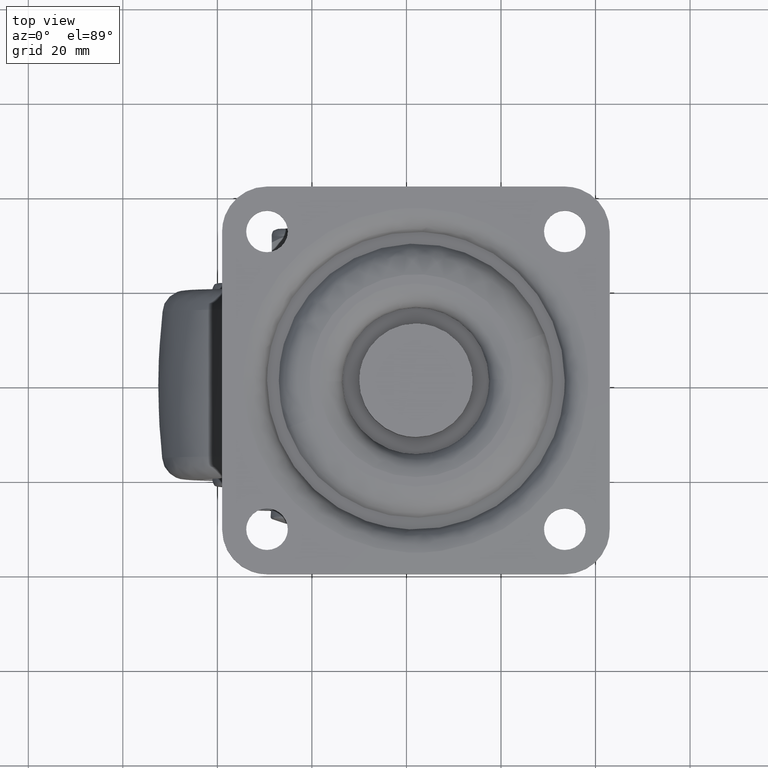
[diagram: clean part render]
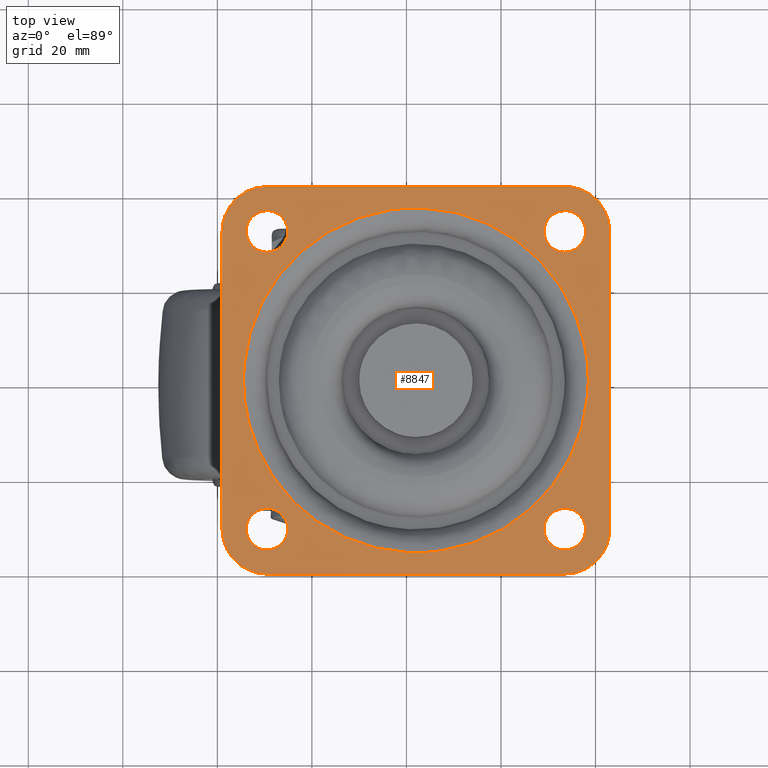
[diagram: same view with one face highlighted and labeled with its STEP entity id]
A machine part, top view. The second image highlights one B-rep face of the part: STEP entity #8847.
In plain terms, the highlighted face is a freeform B-spline surface patch.
Its self-contained STEP definition (entity closure, byte-faithful):
#7495=CARTESIAN_POINT('',(-6.527402701562045,28.255979384070901,57.500000000000000));
#7496=VERTEX_POINT('',#7495);
#7502=CARTESIAN_POINT('',(-5.099999900000237,31.500000000000000,57.500000000000000));
#7503=VERTEX_POINT('',#7502);
#7504=CARTESIAN_POINT('',(-6.527402701562045,28.255979384070901,57.500000000000000));
#7505=CARTESIAN_POINT('',(-6.289242418282301,28.474142888724820,57.499999999999950));
#7506=CARTESIAN_POINT('',(-5.836118736105115,28.991989090713211,57.499999999999957));
#7507=CARTESIAN_POINT('',(-5.264003538548097,30.075355924487379,57.500000000000227));
#7508=CARTESIAN_POINT('',(-5.099533962895871,30.967967025596391,57.499999999999751));
#7509=CARTESIAN_POINT('',(-5.099999900000237,31.500000000000000,57.500000000000000));
#7510=B_SPLINE_CURVE_WITH_KNOTS('',3,(#7504,#7505,#7506,#7507,#7508,#7509),.UNSPECIFIED.,.F.,.U.,(4,1,1,4),(0.000000040442501,0.968938562510468,2.051848817631985,3.647763831372812),.UNSPECIFIED.);
#7511=EDGE_CURVE('',#7496,#7503,#7510,.T.);
#7513=CARTESIAN_POINT('',(-9.500001631323901,35.900000099999687,57.500000000000000));
#7514=VERTEX_POINT('',#7513);
#7515=CARTESIAN_POINT('',(-5.099999900000237,31.500000000000000,57.500000000000000));
#7516=CARTESIAN_POINT('',(-5.099786186830957,31.949991853548159,57.499999999999929));
#7517=CARTESIAN_POINT('',(-5.219791463868427,32.723802614140283,57.500000000000057));
#7518=CARTESIAN_POINT('',(-5.638137398786255,33.667444084587402,57.499999999999943));
#7519=CARTESIAN_POINT('',(-6.085469292208522,34.302507095319129,57.500000000000099));
#7520=CARTESIAN_POINT('',(-6.636267202598068,34.874050999744917,57.499999999999993));
#7521=CARTESIAN_POINT('',(-7.344313519638554,35.379272300795563,57.499999999999829));
#7522=CARTESIAN_POINT('',(-8.348157021193245,35.795071142282303,57.499999999999922));
#7523=CARTESIAN_POINT('',(-9.086019370627380,35.900142216079963,57.500000000000227));
#7524=CARTESIAN_POINT('',(-9.500001631323901,35.900000099999687,57.500000000000000));
#7525=B_SPLINE_CURVE_WITH_KNOTS('',3,(#7515,#7516,#7517,#7518,#7519,#7520,#7521,#7522,#7523,#7524),.UNSPECIFIED.,.F.,.U.,(4,1,1,1,1,1,1,4),(0.000000127059161,1.349911511281638,2.321851523640309,3.077830769313980,3.671722548281210,4.697689286290284,5.669633217520468,6.911548281187075),.UNSPECIFIED.);
#7526=EDGE_CURVE('',#7503,#7514,#7525,.T.);
#7528=CARTESIAN_POINT('',(-12.472597298438410,34.744020615929102,57.500000000000000));
#7529=VERTEX_POINT('',#7528);
#7530=CARTESIAN_POINT('',(-9.500001631323901,35.900000099999687,57.500000000000000));
#7531=CARTESIAN_POINT('',(-9.976025415636716,35.900306320871763,57.500000000000007));
#7532=CARTESIAN_POINT('',(-10.621764202826281,35.794125980035773,57.500000000000107));
#7533=CARTESIAN_POINT('',(-11.632807391123571,35.387397916244190,57.499999999999929));
#7534=CARTESIAN_POINT('',(-12.146866166264241,35.042799054317051,57.500000000000107));
#7535=CARTESIAN_POINT('',(-12.472597298438410,34.744020615929102,57.500000000000000));
#7536=B_SPLINE_CURVE_WITH_KNOTS('',3,(#7530,#7531,#7532,#7533,#7534,#7535),.UNSPECIFIED.,.F.,.U.,(4,1,1,4),(0.000000029733942,1.427917064212665,1.937858270751911,3.263782619541725),.UNSPECIFIED.);
#7537=EDGE_CURVE('',#7514,#7529,#7536,.T.);
#7577=CARTESIAN_POINT('',(-13.900000100000231,31.500000000000000,57.500000000000000));
#7578=VERTEX_POINT('',#7577);
#7579=CARTESIAN_POINT('',(-12.472597298438410,34.744020615929102,57.500000000000000));
#7580=CARTESIAN_POINT('',(-12.682726996081870,34.551513056882762,57.499999999999901));
#7581=CARTESIAN_POINT('',(-13.078150073917270,34.111273331500207,57.500000000000263));
#7582=CARTESIAN_POINT('',(-13.532871741502360,33.337218183686339,57.499999999999901));
#7583=CARTESIAN_POINT('',(-13.830662593077900,32.449901921192627,57.499999999999993));
#7584=CARTESIAN_POINT('',(-13.900052577633961,31.822981861195441,57.500000000000128));
#7585=CARTESIAN_POINT('',(-13.900000100000231,31.500000000000000,57.500000000000000));
#7586=B_SPLINE_CURVE_WITH_KNOTS('',3,(#7579,#7580,#7581,#7582,#7583,#7584,#7585),.UNSPECIFIED.,.F.,.U.,(4,1,1,1,4),(0.000000040442399,0.854943413873980,1.766907071950923,2.678825309338811,3.647763831372818),.UNSPECIFIED.);
#7587=EDGE_CURVE('',#7529,#7578,#7586,.T.);
#7589=CARTESIAN_POINT('',(-9.499998368676536,27.099999900000309,57.500000000000000));
#7590=VERTEX_POINT('',#7589);
#7591=CARTESIAN_POINT('',(-13.900000100000231,31.500000000000000,57.500000000000000));
#7592=CARTESIAN_POINT('',(-13.900088943306439,31.140018430724449,57.500000000000107));
#7593=CARTESIAN_POINT('',(-13.813377505169990,30.438106310771779,57.499999999999858));
#7594=CARTESIAN_POINT('',(-13.454009583135351,29.489075527258290,57.499999999999993));
#7595=CARTESIAN_POINT('',(-12.935968176006460,28.703447470015622,57.499999999999957));
#7596=CARTESIAN_POINT('',(-12.360467601219980,28.128008379485181,57.499999999999957));
#7597=CARTESIAN_POINT('',(-11.637487786954241,27.618725419536201,57.499999999999893));
#7598=CARTESIAN_POINT('',(-10.705854722502730,27.212571967596539,57.500000000000583));
#7599=CARTESIAN_POINT('',(-9.913981808138875,27.099851830851868,57.499999999999218));
#7600=CARTESIAN_POINT('',(-9.499998368676536,27.099999900000309,57.500000000000000));
#7601=B_SPLINE_CURVE_WITH_KNOTS('',3,(#7591,#7592,#7593,#7594,#7595,#7596,#7597,#7598,#7599,#7600),.UNSPECIFIED.,.F.,.U.,(4,1,1,1,1,1,1,4),(0.000000127036394,1.079927022691353,2.105872757187941,3.023805829710967,3.887740412407450,4.535690525138591,5.669633217517702,6.911548281187209),.UNSPECIFIED.);
#7602=EDGE_CURVE('',#7578,#7590,#7601,.T.);
#7604=CARTESIAN_POINT('',(-9.499998368676536,27.099999900000309,57.500000000000000));
#7605=CARTESIAN_POINT('',(-9.075004617093955,27.099826009917692,57.500000000000043));
#7606=CARTESIAN_POINT('',(-8.378176808601715,27.201805057727221,57.500000000000227));
#7607=CARTESIAN_POINT('',(-7.364497932445842,27.609588551627638,57.499999999999673));
#7608=CARTESIAN_POINT('',(-6.815586144059509,27.991748031526900,57.500000000000242));
#7609=CARTESIAN_POINT('',(-6.527402701562045,28.255979384070901,57.500000000000000));
#7610=B_SPLINE_CURVE_WITH_KNOTS('',3,(#7604,#7605,#7606,#7607,#7608,#7609),.UNSPECIFIED.,.F.,.U.,(4,1,1,4),(0.000000029735359,1.274917707546353,2.090858378360901,3.263782619541709),.UNSPECIFIED.);
#7611=EDGE_CURVE('',#7590,#7496,#7610,.T.);
#7700=CARTESIAN_POINT('',(-6.527402701562045,-34.744020615929102,57.499999999999993));
#7701=VERTEX_POINT('',#7700);
#7707=CARTESIAN_POINT('',(-5.099999900000237,-31.500000000000000,57.500000000000000));
#7708=VERTEX_POINT('',#7707);
#7709=CARTESIAN_POINT('',(-6.527402701562045,-34.744020615929102,57.499999999999993));
#7710=CARTESIAN_POINT('',(-6.219092384708263,-34.461762944287763,57.499999999999801));
#7711=CARTESIAN_POINT('',(-5.842224674313779,-34.001432222025670,57.500000000000178));
#7712=CARTESIAN_POINT('',(-5.424606429474629,-33.210437128142473,57.499999999999922));
#7713=CARTESIAN_POINT('',(-5.169340456336110,-32.449907933971268,57.499999999999957));
#7714=CARTESIAN_POINT('',(-5.099940596523371,-31.822981297149560,57.500000000000007));
#7715=CARTESIAN_POINT('',(-5.099999900000237,-31.500000000000000,57.500000000000000));
#7716=B_SPLINE_CURVE_WITH_KNOTS('',3,(#7709,#7710,#7711,#7712,#7713,#7714,#7715),.UNSPECIFIED.,.F.,.U.,(4,1,1,1,4),(0.000000040440889,1.253925704476554,1.766907071949888,2.678825309338649,3.647763831372813),.UNSPECIFIED.);
#7717=EDGE_CURVE('',#7701,#7708,#7716,.T.);
#7719=CARTESIAN_POINT('',(-9.500001631323901,-27.099999900000309,57.500000000000000));
#7720=VERTEX_POINT('',#7719);
#7721=CARTESIAN_POINT('',(-5.099999900000237,-31.500000000000000,57.500000000000000));
#7722=CARTESIAN_POINT('',(-5.099910969079035,-31.140019993687240,57.499999999999979));
#7723=CARTESIAN_POINT('',(-5.177747142504550,-30.510103292868610,57.500000000000071));
#7724=CARTESIAN_POINT('',(-5.465046458203291,-29.691448828809460,57.499999999999922));
#7725=CARTESIAN_POINT('',(-5.834785638188303,-29.029321363854422,57.499999999999901));
#7726=CARTESIAN_POINT('',(-6.331450174374908,-28.408722999708338,57.500000000000462));
#7727=CARTESIAN_POINT('',(-6.937562806119041,-27.892346763964941,57.499999999998970));
#7728=CARTESIAN_POINT('',(-7.689023887860149,-27.460522799228109,57.500000000000760));
#7729=CARTESIAN_POINT('',(-8.528084640690015,-27.171871015518722,57.500000000000327));
#7730=CARTESIAN_POINT('',(-9.176023324400797,-27.099946098939590,57.499999999999837));
#7731=CARTESIAN_POINT('',(-9.500001631323901,-27.099999900000309,57.500000000000000));
#7732=B_SPLINE_CURVE_WITH_KNOTS('',3,(#7721,#7722,#7723,#7724,#7725,#7726,#7727,#7728,#7729,#7730,#7731),.UNSPECIFIED.,.F.,.U.,(4,1,1,1,1,1,1,1,4),(0.000000127038092,1.079927022692838,1.889878578176466,2.591833459394220,3.347811319401545,4.265704315630147,4.967673592738070,5.939616183974813,6.911548281187198),.UNSPECIFIED.);
#7733=EDGE_CURVE('',#7708,#7720,#7732,.T.);
#7735=CARTESIAN_POINT('',(-12.472597298438410,-28.255979384070908,57.500000000000000));
#7736=VERTEX_POINT('',#7735);
#7737=CARTESIAN_POINT('',(-9.500001631323901,-27.099999900000309,57.500000000000000));
#7738=CARTESIAN_POINT('',(-9.822983268207874,-27.099948528702559,57.500000000000043));
#7739=CARTESIAN_POINT('',(-10.383904721675650,-27.162057700292731,57.499999999999979));
#7740=CARTESIAN_POINT('',(-11.426282707162139,-27.485943478332160,57.499999999999979));
#7741=CARTESIAN_POINT('',(-12.084334513467979,-27.899556363934991,57.500000000000043));
#7742=CARTESIAN_POINT('',(-12.472597298438410,-28.255979384070908,57.500000000000000));
#7743=B_SPLINE_CURVE_WITH_KNOTS('',3,(#7737,#7738,#7739,#7740,#7741,#7742),.UNSPECIFIED.,.F.,.U.,(4,1,1,4),(0.000000029733964,0.968938780017570,1.682868004581571,3.263782619541737),.UNSPECIFIED.);
#7744=EDGE_CURVE('',#7720,#7736,#7743,.T.);
#7785=CARTESIAN_POINT('',(-13.900000100000231,-31.500000000000000,57.500000000000000));
#7786=VERTEX_POINT('',#7785);
#7787=CARTESIAN_POINT('',(-12.472597298438410,-28.255979384070908,57.500000000000000));
#7788=CARTESIAN_POINT('',(-12.738789489970991,-28.499798039158431,57.500000000000178));
#7789=CARTESIAN_POINT('',(-13.223071646265449,-29.067987621461398,57.499999999999837));
#7790=CARTESIAN_POINT('',(-13.760222360934220,-30.170209431396870,57.500000000000242));
#7791=CARTESIAN_POINT('',(-13.900256394804311,-31.025009730534240,57.499999999999929));
#7792=CARTESIAN_POINT('',(-13.900000100000231,-31.500000000000000,57.500000000000000));
#7793=B_SPLINE_CURVE_WITH_KNOTS('',3,(#7787,#7788,#7789,#7790,#7791,#7792),.UNSPECIFIED.,.F.,.U.,(4,1,1,4),(0.000000040442767,1.082931770160596,2.222843118794138,3.647763831372810),.UNSPECIFIED.);
#7794=EDGE_CURVE('',#7736,#7786,#7793,.T.);
#7796=CARTESIAN_POINT('',(-9.499998368676527,-35.900000099999687,57.499999999999993));
#7797=VERTEX_POINT('',#7796);
#7798=CARTESIAN_POINT('',(-13.900000100000231,-31.500000000000000,57.500000000000000));
#7799=CARTESIAN_POINT('',(-13.900094308276021,-31.859982353179120,57.500000000000043));
#7800=CARTESIAN_POINT('',(-13.822240187629770,-32.489891445333832,57.499999999999922));
#7801=CARTESIAN_POINT('',(-13.534964431722720,-33.308556414042997,57.500000000000043));
#7802=CARTESIAN_POINT('',(-13.182812095009840,-33.939147466300021,57.499999999999829));
#7803=CARTESIAN_POINT('',(-12.749781789525519,-34.494024375031231,57.500000000000163));
#7804=CARTESIAN_POINT('',(-12.233600751604721,-34.973537471384191,57.499999999999567));
#7805=CARTESIAN_POINT('',(-11.555270929897191,-35.420813600895109,57.500000000000490));
#7806=CARTESIAN_POINT('',(-10.651856934228819,-35.795086017757249,57.499999999999083));
#7807=CARTESIAN_POINT('',(-9.913977688135141,-35.900146379699819,57.500000000000803));
#7808=CARTESIAN_POINT('',(-9.499998368676527,-35.900000099999687,57.499999999999993));
#7809=B_SPLINE_CURVE_WITH_KNOTS('',3,(#7798,#7799,#7800,#7801,#7802,#7803,#7804,#7805,#7806,#7807,#7808),.UNSPECIFIED.,.F.,.U.,(4,1,1,1,1,1,1,1,4),(0.000000127030965,1.079927022688323,1.889878578173505,2.591833459392204,3.239824994284502,3.995720813652691,4.697689286285346,5.669633217517719,6.911548281187228),.UNSPECIFIED.);
#7810=EDGE_CURVE('',#7786,#7797,#7809,.T.);
#7812=CARTESIAN_POINT('',(-9.499998368676527,-35.900000099999687,57.499999999999993));
#7813=CARTESIAN_POINT('',(-9.075007696535307,-35.900173175037636,57.499999999999901));
#7814=CARTESIAN_POINT('',(-8.293165013702598,-35.785830863804136,57.499999999999837));
#7815=CARTESIAN_POINT('',(-7.288646388126717,-35.347457354733038,57.500000000000497));
#7816=CARTESIAN_POINT('',(-6.752968548004724,-34.950765765492967,57.499999999999758));
#7817=CARTESIAN_POINT('',(-6.527402701562045,-34.744020615929102,57.499999999999993));
#7818=B_SPLINE_CURVE_WITH_KNOTS('',3,(#7812,#7813,#7814,#7815,#7816,#7817),.UNSPECIFIED.,.F.,.U.,(4,1,1,4),(0.000000029733318,1.274917707544901,2.345842329852147,3.263782619541721),.UNSPECIFIED.);
#7819=EDGE_CURVE('',#7797,#7701,#7818,.T.);
#7907=CARTESIAN_POINT('',(56.472597298438188,-34.744020615929102,57.500000000000000));
#7908=VERTEX_POINT('',#7907);
#7914=CARTESIAN_POINT('',(57.900000100000000,-31.500000000000000,57.500000000000000));
#7915=VERTEX_POINT('',#7914);
#7916=CARTESIAN_POINT('',(56.472597298438188,-34.744020615929102,57.500000000000000));
#7917=CARTESIAN_POINT('',(56.682732805457853,-34.551516247601413,57.500000000000007));
#7918=CARTESIAN_POINT('',(57.039865607044483,-34.153868033024267,57.499999999999943));
#7919=CARTESIAN_POINT('',(57.428848638926723,-33.520156989498062,57.499999999999993));
#7920=CARTESIAN_POINT('',(57.788123735391103,-32.658762446106543,57.500000000000099));
#7921=CARTESIAN_POINT('',(57.900313444675383,-31.975019706936038,57.499999999999872));
#7922=CARTESIAN_POINT('',(57.900000100000000,-31.500000000000000,57.500000000000000));
#7923=B_SPLINE_CURVE_WITH_KNOTS('',3,(#7916,#7917,#7918,#7919,#7920,#7921,#7922),.UNSPECIFIED.,.F.,.U.,(4,1,1,1,4),(0.000000040437435,0.854943413870985,1.595915054214738,2.222843118793711,3.647763831372846),.UNSPECIFIED.);
#7924=EDGE_CURVE('',#7908,#7915,#7923,.T.);
#7926=CARTESIAN_POINT('',(53.499998368676337,-27.099999900000299,57.500000000000000));
#7927=VERTEX_POINT('',#7926);
#7928=CARTESIAN_POINT('',(57.900000100000000,-31.500000000000000,57.500000000000000));
#7929=CARTESIAN_POINT('',(57.900023626821913,-31.230018980401550,57.500000000000050));
#7930=CARTESIAN_POINT('',(57.845178813040192,-30.636066099081312,57.500000000000000));
#7931=CARTESIAN_POINT('',(57.561421341261422,-29.700251203293600,57.500000000000163));
#7932=CARTESIAN_POINT('',(57.090430198910482,-28.903487504446758,57.499999999999467));
#7933=CARTESIAN_POINT('',(56.496490077179082,-28.248277304609388,57.500000000001293));
#7934=CARTESIAN_POINT('',(55.840666878181523,-27.736430327848488,57.499999999998430));
#7935=CARTESIAN_POINT('',(54.831702310621530,-27.243840950817539,57.500000000001400));
#7936=CARTESIAN_POINT('',(54.004008079609498,-27.099673051419831,57.499999999999723));
#7937=CARTESIAN_POINT('',(53.499998368676337,-27.099999900000299,57.500000000000000));
#7938=B_SPLINE_CURVE_WITH_KNOTS('',3,(#7928,#7929,#7930,#7931,#7932,#7933,#7934,#7935,#7936,#7937),.UNSPECIFIED.,.F.,.U.,(4,1,1,1,1,1,1,4),(0.000000127045891,0.809947599830785,1.781884856258335,2.915832673779339,3.563737671104057,4.427706320183981,5.399648910669052,6.911548281187097),.UNSPECIFIED.);
#7939=EDGE_CURVE('',#7915,#7927,#7938,.T.);
#7941=CARTESIAN_POINT('',(50.527402701561819,-28.255979384070908,57.500000000000000));
#7942=VERTEX_POINT('',#7941);
#7943=CARTESIAN_POINT('',(53.499998368676337,-27.099999900000299,57.500000000000000));
#7944=CARTESIAN_POINT('',(53.177014619449913,-27.099936225858219,57.500000000000050));
#7945=CARTESIAN_POINT('',(52.565095496954882,-27.167699892867759,57.499999999999929));
#7946=CARTESIAN_POINT('',(51.526903699952292,-27.510191887900820,57.500000000000028));
#7947=CARTESIAN_POINT('',(50.878150510499573,-27.934164339319882,57.499999999999893));
#7948=CARTESIAN_POINT('',(50.527402701561819,-28.255979384070908,57.500000000000000));
#7949=B_SPLINE_CURVE_WITH_KNOTS('',3,(#7943,#7944,#7945,#7946,#7947,#7948),.UNSPECIFIED.,.F.,.U.,(4,1,1,4),(0.000000029732344,0.968938780015739,1.835865585016554,3.263782619541724),.UNSPECIFIED.);
#7950=EDGE_CURVE('',#7927,#7942,#7949,.T.);
#7990=CARTESIAN_POINT('',(49.099999900000000,-31.500000000000000,57.500000000000000));
#7991=VERTEX_POINT('',#7990);
#7992=CARTESIAN_POINT('',(50.527402701561819,-28.255979384070908,57.500000000000000));
#7993=CARTESIAN_POINT('',(50.289234666950200,-28.474137512931868,57.500000000000043));
#7994=CARTESIAN_POINT('',(49.911679692156490,-28.905717579540610,57.500000000000007));
#7995=CARTESIAN_POINT('',(49.443655826993670,-29.714289441299918,57.500000000000050));
#7996=CARTESIAN_POINT('',(49.162909547286880,-30.569062405506930,57.499999999999922));
#7997=CARTESIAN_POINT('',(49.099982171529199,-31.215023152366491,57.500000000000128));
#7998=CARTESIAN_POINT('',(49.099999900000000,-31.500000000000000,57.500000000000000));
#7999=B_SPLINE_CURVE_WITH_KNOTS('',3,(#7992,#7993,#7994,#7995,#7996,#7997,#7998),.UNSPECIFIED.,.F.,.U.,(4,1,1,1,4),(0.000000040437690,0.968938562507633,1.709905313084683,2.792820457975227,3.647763831372812),.UNSPECIFIED.);
#8000=EDGE_CURVE('',#7942,#7991,#7999,.T.);
#8002=CARTESIAN_POINT('',(53.500001631323698,-35.900000099999701,57.500000000000000));
#8003=VERTEX_POINT('',#8002);
#8004=CARTESIAN_POINT('',(49.099999900000000,-31.500000000000000,57.500000000000000));
#8005=CARTESIAN_POINT('',(49.099959588309851,-31.841962443142009,57.500000000000007));
#8006=CARTESIAN_POINT('',(49.190547288926311,-32.615948261560767,57.500000000000078));
#8007=CARTESIAN_POINT('',(49.568839478028309,-33.561960779494179,57.499999999999908));
#8008=CARTESIAN_POINT('',(50.115223749617208,-34.347679584644361,57.500000000000291));
#8009=CARTESIAN_POINT('',(50.613948078554152,-34.846426560519987,57.499999999999453));
#8010=CARTESIAN_POINT('',(51.256999943043112,-35.311215940467399,57.500000000000632));
#8011=CARTESIAN_POINT('',(52.168284325158687,-35.756175022750497,57.499999999998970));
#8012=CARTESIAN_POINT('',(52.995996559431383,-35.900321860196392,57.500000000000469));
#8013=CARTESIAN_POINT('',(53.500001631323698,-35.900000099999701,57.500000000000000));
#8014=B_SPLINE_CURVE_WITH_KNOTS('',3,(#8004,#8005,#8006,#8007,#8008,#8009,#8010,#8011,#8012,#8013),.UNSPECIFIED.,.F.,.U.,(4,1,1,1,1,1,1,4),(0.000000127033682,1.025916282003032,2.321851523628146,3.023805829711797,3.887740412408114,4.427706320180405,5.399648910667081,6.911548281187237),.UNSPECIFIED.);
#8015=EDGE_CURVE('',#7991,#8003,#8014,.T.);
#8017=CARTESIAN_POINT('',(53.500001631323698,-35.900000099999701,57.500000000000000));
#8018=CARTESIAN_POINT('',(53.822976328300093,-35.900039312681507,57.499999999999922));
#8019=CARTESIAN_POINT('',(54.553941406617547,-35.819250434338770,57.500000000000149));
#8020=CARTESIAN_POINT('',(55.582261499218632,-35.433060715037932,57.500000000000163));
#8021=CARTESIAN_POINT('',(56.209445585962939,-34.985226012104270,57.499999999999773));
#8022=CARTESIAN_POINT('',(56.472597298438188,-34.744020615929102,57.500000000000000));
#8023=B_SPLINE_CURVE_WITH_KNOTS('',3,(#8017,#8018,#8019,#8020,#8021,#8022),.UNSPECIFIED.,.F.,.U.,(4,1,1,4),(0.000000029739461,0.968938780020749,2.192849980075957,3.263782619541692),.UNSPECIFIED.);
#8024=EDGE_CURVE('',#8003,#7908,#8023,.T.);
#8113=CARTESIAN_POINT('',(56.472597298438188,28.255979384070901,57.500000000000000));
#8114=VERTEX_POINT('',#8113);
#8120=CARTESIAN_POINT('',(57.900000100000000,31.500000000000000,57.500000000000000));
#8121=VERTEX_POINT('',#8120);
#8122=CARTESIAN_POINT('',(56.472597298438188,28.255979384070901,57.500000000000000));
#8123=CARTESIAN_POINT('',(56.808951798638958,28.563882456073049,57.500000000000050));
#8124=CARTESIAN_POINT('',(57.240441274619663,29.105116015784620,57.499999999999879));
#8125=CARTESIAN_POINT('',(57.662857259527158,30.001524068283850,57.500000000000107));
#8126=CARTESIAN_POINT('',(57.858603853620217,30.740043967974710,57.499999999999488));
#8127=CARTESIAN_POINT('',(57.900003706170452,31.272020481710410,57.500000000000362));
#8128=CARTESIAN_POINT('',(57.900000100000000,31.500000000000000,57.500000000000000));
#8129=B_SPLINE_CURVE_WITH_KNOTS('',3,(#8122,#8123,#8124,#8125,#8126,#8127,#8128),.UNSPECIFIED.,.F.,.U.,(4,1,1,1,4),(0.000000040445024,1.367912114959336,2.051848817633561,2.963814317691528,3.647763831372816),.UNSPECIFIED.);
#8130=EDGE_CURVE('',#8114,#8121,#8129,.T.);
#8132=CARTESIAN_POINT('',(53.499998368676337,35.900000099999701,57.500000000000000));
#8133=VERTEX_POINT('',#8132);
#8134=CARTESIAN_POINT('',(57.900000100000000,31.500000000000000,57.500000000000000));
#8135=CARTESIAN_POINT('',(57.900097274844079,31.859982591711990,57.500000000000071));
#8136=CARTESIAN_POINT('',(57.822236780845557,32.489891272840993,57.499999999999829));
#8137=CARTESIAN_POINT('',(57.558897751723123,33.240334652640620,57.500000000000178));
#8138=CARTESIAN_POINT('',(57.222891098920492,33.878328351315488,57.499999999999758));
#8139=CARTESIAN_POINT('',(56.748899844262588,34.517524331708742,57.499999999999922));
#8140=CARTESIAN_POINT('',(56.107414861072378,35.077765164668662,57.500000000001002));
#8141=CARTESIAN_POINT('',(55.390123183735483,35.495751428408148,57.499999999998550));
#8142=CARTESIAN_POINT('',(54.561858984252503,35.809471424051132,57.500000000001798));
#8143=CARTESIAN_POINT('',(53.895979646443287,35.900131638956992,57.499999999998941));
#8144=CARTESIAN_POINT('',(53.499998368676337,35.900000099999701,57.500000000000000));
#8145=B_SPLINE_CURVE_WITH_KNOTS('',3,(#8134,#8135,#8136,#8137,#8138,#8139,#8140,#8141,#8142,#8143,#8144),.UNSPECIFIED.,.F.,.U.,(4,1,1,1,1,1,1,1,4),(0.000000127039663,1.079927022694858,1.889878578178412,2.375861410940565,3.239824994287245,4.265704315630608,4.913671791979601,5.723640054548143,6.911548281187213),.UNSPECIFIED.);
#8146=EDGE_CURVE('',#8121,#8133,#8145,.T.);
#8148=CARTESIAN_POINT('',(50.527402701561812,34.744020615929102,57.500000000000000));
#8149=VERTEX_POINT('',#8148);
#8150=CARTESIAN_POINT('',(53.499998368676337,35.900000099999701,57.500000000000000));
#8151=CARTESIAN_POINT('',(53.075000661600349,35.900190558357060,57.499999999999950));
#8152=CARTESIAN_POINT('',(52.463169600623722,35.810616234219943,57.500000000000007));
#8153=CARTESIAN_POINT('',(51.440405107967813,35.433234446017607,57.500000000000007));
#8154=CARTESIAN_POINT('',(50.878152212053202,35.065848333222377,57.500000000000057));
#8155=CARTESIAN_POINT('',(50.527402701561812,34.744020615929102,57.500000000000000));
#8156=B_SPLINE_CURVE_WITH_KNOTS('',3,(#8150,#8151,#8152,#8153,#8154,#8155),.UNSPECIFIED.,.F.,.U.,(4,1,1,4),(0.000000029734006,1.274917707545839,1.835865585018242,3.263782619541754),.UNSPECIFIED.);
#8157=EDGE_CURVE('',#8133,#8149,#8156,.T.);
#8198=CARTESIAN_POINT('',(49.099999900000000,31.500000000000000,57.500000000000000));
#8199=VERTEX_POINT('',#8198);
#8200=CARTESIAN_POINT('',(50.527402701561812,34.744020615929102,57.500000000000000));
#8201=CARTESIAN_POINT('',(50.289255026134732,34.525850631177128,57.499999999999893));
#8202=CARTESIAN_POINT('',(49.823480060389109,33.993648023090401,57.500000000000178));
#8203=CARTESIAN_POINT('',(49.258005966501329,32.905688882939600,57.499999999999893));
#8204=CARTESIAN_POINT('',(49.099604907481499,32.013014783961630,57.500000000000000));
#8205=CARTESIAN_POINT('',(49.099999900000000,31.500000000000000,57.500000000000000));
#8206=B_SPLINE_CURVE_WITH_KNOTS('',3,(#8200,#8201,#8202,#8203,#8204,#8205),.UNSPECIFIED.,.F.,.U.,(4,1,1,4),(0.000000040442838,0.968938562511109,2.108855720755513,3.647763831372785),.UNSPECIFIED.);
#8207=EDGE_CURVE('',#8149,#8199,#8206,.T.);
#8209=CARTESIAN_POINT('',(53.500001631323691,27.099999900000299,57.500000000000000));
#8210=VERTEX_POINT('',#8209);
#8211=CARTESIAN_POINT('',(49.099999900000000,31.500000000000000,57.500000000000000));
#8212=CARTESIAN_POINT('',(49.099569585129643,30.977963704595648,57.500000000000050));
#8213=CARTESIAN_POINT('',(49.239395190931681,30.204338685423000,57.500000000000007));
#8214=CARTESIAN_POINT('',(49.679791051254490,29.273493056978300,57.500000000000107));
#8215=CARTESIAN_POINT('',(50.085463710645371,28.697491904825309,57.499999999999837));
#8216=CARTESIAN_POINT('',(50.623755661671332,28.138941996791321,57.499999999999837));
#8217=CARTESIAN_POINT('',(51.210791055243661,27.714640923105559,57.500000000000057));
#8218=CARTESIAN_POINT('',(51.942532336704417,27.363057000988480,57.500000000000028));
#8219=CARTESIAN_POINT('',(52.672070281274372,27.151495869660060,57.500000000000021));
#8220=CARTESIAN_POINT('',(53.230025995327367,27.099978730998139,57.499999999999993));
#8221=CARTESIAN_POINT('',(53.500001631323691,27.099999900000299,57.500000000000000));
#8222=B_SPLINE_CURVE_WITH_KNOTS('',3,(#8211,#8212,#8213,#8214,#8215,#8216,#8217,#8218,#8219,#8220,#8221),.UNSPECIFIED.,.F.,.U.,(4,1,1,1,1,1,1,1,4),(0.000000127029904,1.565894706614165,2.321851523624427,3.077830769301917,3.671722548271837,4.643682449016897,5.237658483526714,6.101618188471355,6.911548281187166),.UNSPECIFIED.);
#8223=EDGE_CURVE('',#8199,#8210,#8222,.T.);
#8225=CARTESIAN_POINT('',(53.500001631323691,27.099999900000299,57.500000000000000));
#8226=CARTESIAN_POINT('',(54.027042858537158,27.099586167441121,57.499999999999979));
#8227=CARTESIAN_POINT('',(54.791668161535469,27.239090199680330,57.500000000000043));
#8228=CARTESIAN_POINT('',(55.778981529118262,27.704600297764252,57.499999999999837));
#8229=CARTESIAN_POINT('',(56.234510929531332,28.037729968661381,57.500000000000263));
#8230=CARTESIAN_POINT('',(56.472597298438188,28.255979384070901,57.500000000000000));
#8231=B_SPLINE_CURVE_WITH_KNOTS('',3,(#8225,#8226,#8227,#8228,#8229,#8230),.UNSPECIFIED.,.F.,.U.,(4,1,1,4),(0.000000029735938,1.580914644664401,2.294843869221769,3.263782619541733),.UNSPECIFIED.);
#8232=EDGE_CURVE('',#8210,#8114,#8231,.T.);
#8543=CARTESIAN_POINT('',(-14.333910820972809,3.204366875894487,57.500000000000000));
#8544=VERTEX_POINT('',#8543);
#8558=CARTESIAN_POINT('',(-14.474937185532850,2.842171E-014,57.500000000000000));
#8559=VERTEX_POINT('',#8558);
#8560=CARTESIAN_POINT('',(-14.474937185532850,2.842171E-014,57.500000000000000));
#8561=CARTESIAN_POINT('',(-14.474946117617449,1.069500723097246,57.499999999999901));
#8562=CARTESIAN_POINT('',(-14.427873950594750,2.139001523035189,57.499999999999979));
#8563=CARTESIAN_POINT('',(-14.333910820972809,3.204366875894487,57.500000000000000));
#8564=B_SPLINE_CURVE_WITH_KNOTS('',3,(#8560,#8561,#8562,#8563),.UNSPECIFIED.,.F.,.U.,(4,4),(1.107527E-010,3.208507092480315),.UNSPECIFIED.);
#8565=EDGE_CURVE('',#8559,#8544,#8564,.T.);
#8567=CARTESIAN_POINT('',(20.396316239190199,-36.439665765240342,57.500000000000007));
#8568=VERTEX_POINT('',#8567);
#8569=CARTESIAN_POINT('',(20.396316239190199,-36.439665765240342,57.500000000000007));
#8570=CARTESIAN_POINT('',(18.367883084306769,-36.350576105777492,57.499999999999993));
#8571=CARTESIAN_POINT('',(14.975654736335240,-35.915465085353567,57.500000000000007));
#8572=CARTESIAN_POINT('',(10.282669964635421,-34.628591528917433,57.500000000000163));
#8573=CARTESIAN_POINT('',(6.578197912235543,-33.132014952046610,57.499999999999879));
#8574=CARTESIAN_POINT('',(2.609524799692932,-31.008681322711091,57.499999999999993));
#8575=CARTESIAN_POINT('',(-1.069597318147834,-28.401325952735242,57.500000000000107));
#8576=CARTESIAN_POINT('',(-4.512429719812303,-25.169889414403741,57.500000000000078));
#8577=CARTESIAN_POINT('',(-7.650385932024054,-21.450563682255179,57.499999999999453));
#8578=CARTESIAN_POINT('',(-10.358759381717960,-17.136607817046801,57.500000000001172));
#8579=CARTESIAN_POINT('',(-12.206701645753030,-12.867597918928830,57.499999999999353));
#8580=CARTESIAN_POINT('',(-13.412232423022621,-8.986689934240573,57.500000000000647));
#8581=CARTESIAN_POINT('',(-14.246147984061521,-4.930900117324254,57.499999999995673));
#8582=CARTESIAN_POINT('',(-14.475024603551139,-1.740325190778608,57.500000000009763));
#8583=CARTESIAN_POINT('',(-14.474937185532850,2.842171E-014,57.500000000000000));
#8584=B_SPLINE_CURVE_WITH_KNOTS('',3,(#8569,#8570,#8571,#8572,#8573,#8574,#8575,#8576,#8577,#8578,#8579,#8580,#8581,#8582,#8583),.UNSPECIFIED.,.F.,.U.,(4,1,1,1,1,1,1,1,1,1,1,1,4),(0.000000033085712,6.091136233090140,10.224440452912930,14.575270877942510,18.055931347938639,23.712025072280539,28.062809975849330,32.196110648944149,38.287263937080198,43.290727720999868,46.118762881660537,50.469611194938807,55.690579006061071),.UNSPECIFIED.);
#8585=EDGE_CURVE('',#8568,#8559,#8584,.T.);
#8587=CARTESIAN_POINT('',(58.333910820973323,-3.204366875894420,57.500000000000000));
#8588=VERTEX_POINT('',#8587);
#8589=CARTESIAN_POINT('',(58.333910820973323,-3.204366875894420,57.500000000000000));
#8590=CARTESIAN_POINT('',(58.155677656339037,-5.226906127978746,57.499999999999957));
#8591=CARTESIAN_POINT('',(57.447822582044758,-9.313763457648657,57.500000000000028));
#8592=CARTESIAN_POINT('',(55.522511155609429,-14.731858718525030,57.499999999999851));
#8593=CARTESIAN_POINT('',(53.009288209713560,-19.403679966740640,57.500000000000121));
#8594=CARTESIAN_POINT('',(50.544069288286799,-22.822398945321151,57.499999999999389));
#8595=CARTESIAN_POINT('',(47.924399196526657,-25.737343322453320,57.500000000000213));
#8596=CARTESIAN_POINT('',(44.770034510241487,-28.636782556342119,57.500000000000519));
#8597=CARTESIAN_POINT('',(41.130413084817597,-31.175663917166620,57.499999999999709));
#8598=CARTESIAN_POINT('',(37.139792463242593,-33.257450784344329,57.500000000000028));
#8599=CARTESIAN_POINT('',(33.222315428615140,-34.806287740753660,57.500000000000107));
#8600=CARTESIAN_POINT('',(29.420596744325088,-35.782052674211918,57.500000000000028));
#8601=CARTESIAN_POINT('',(25.042075159831249,-36.429760525767712,57.499999999999943));
#8602=CARTESIAN_POINT('',(22.279848213629410,-36.522692524029537,57.499999999999957));
#8603=CARTESIAN_POINT('',(20.396316239190199,-36.439665765240342,57.500000000000007));
#8604=B_SPLINE_CURVE_WITH_KNOTS('',3,(#8589,#8590,#8591,#8592,#8593,#8594,#8595,#8596,#8597,#8598,#8599,#8600,#8601,#8602,#8603),.UNSPECIFIED.,.F.,.U.,(4,1,1,1,1,1,1,1,1,1,1,1,4),(0.000000033153491,6.091125155215615,12.399828788529200,17.185743270766810,21.971638324127120,25.017221970148722,28.932912120285899,34.806547873513409,38.287194303460730,42.420481281326467,47.423923631484222,50.034415328419193,55.690477720677137),.UNSPECIFIED.);
#8605=EDGE_CURVE('',#8588,#8568,#8604,.T.);
#8654=CARTESIAN_POINT('',(58.474937185533349,2.842171E-014,57.500000000000000));
#8655=VERTEX_POINT('',#8654);
#8656=CARTESIAN_POINT('',(58.474937185533349,2.842171E-014,57.500000000000000));
#8657=CARTESIAN_POINT('',(58.474946379090682,-1.069502660976816,57.499999999999993));
#8658=CARTESIAN_POINT('',(58.427873221136572,-2.139000508944708,57.499999999999993));
#8659=CARTESIAN_POINT('',(58.333910820973323,-3.204366875894420,57.500000000000000));
#8660=B_SPLINE_CURVE_WITH_KNOTS('',3,(#8656,#8657,#8658,#8659),.UNSPECIFIED.,.F.,.U.,(4,4),(1.107652E-010,3.208507092480303),.UNSPECIFIED.);
#8661=EDGE_CURVE('',#8655,#8588,#8660,.T.);
#8663=CARTESIAN_POINT('',(23.603683760810270,36.439665765240392,57.500000000000007));
#8664=VERTEX_POINT('',#8663);
#8665=CARTESIAN_POINT('',(23.603683760810270,36.439665765240392,57.500000000000007));
#8666=CARTESIAN_POINT('',(24.907666126932110,36.382291732369467,57.500000000000078));
#8667=CARTESIAN_POINT('',(27.798557839805159,36.099090989281933,57.499999999999893));
#8668=CARTESIAN_POINT('',(31.843642320837500,35.207521219089209,57.499999999999901));
#8669=CARTESIAN_POINT('',(35.617327455332507,33.901210146779739,57.500000000000277));
#8670=CARTESIAN_POINT('',(39.243914073943692,32.230782622138612,57.499999999999723));
#8671=CARTESIAN_POINT('',(42.661796905254697,30.158860428666941,57.500000000000099));
#8672=CARTESIAN_POINT('',(46.214542663022108,27.394313809558959,57.500000000000867));
#8673=CARTESIAN_POINT('',(49.571486201750723,24.069909465022690,57.499999999999893));
#8674=CARTESIAN_POINT('',(52.377089972910433,20.356934176296239,57.500000000000043));
#8675=CARTESIAN_POINT('',(54.887124625028171,16.022027004060789,57.500000000000043));
#8676=CARTESIAN_POINT('',(56.840848998088838,11.317936739300711,57.499999999999957));
#8677=CARTESIAN_POINT('',(58.181938611587533,5.656037167814863,57.499999999999652));
#8678=CARTESIAN_POINT('',(58.475054218300563,1.885360241671374,57.500000000001869));
#8679=CARTESIAN_POINT('',(58.474937185533349,2.842171E-014,57.500000000000000));
#8680=B_SPLINE_CURVE_WITH_KNOTS('',3,(#8665,#8666,#8667,#8668,#8669,#8670,#8671,#8672,#8673,#8674,#8675,#8676,#8677,#8678,#8679),.UNSPECIFIED.,.F.,.U.,(4,1,1,1,1,1,1,1,1,1,1,1,4),(0.000000032946254,3.915740721550257,8.701642281616792,12.399851340172770,15.880522674154481,20.666426764380621,24.364657414040138,29.368074565514110,34.806611176881013,38.287263937039853,44.378438567920561,50.034506326902083,55.690579006061469),.UNSPECIFIED.);
#8681=EDGE_CURVE('',#8664,#8655,#8680,.T.);
#8683=CARTESIAN_POINT('',(-14.333910820972809,3.204366875894487,57.500000000000000));
#8684=CARTESIAN_POINT('',(-14.193822490656270,4.793496475033193,57.499999999999893));
#8685=CARTESIAN_POINT('',(-13.715738770251880,7.881497661013027,57.500000000000057));
#8686=CARTESIAN_POINT('',(-12.483287793144219,12.138690538869101,57.499999999999972));
#8687=CARTESIAN_POINT('',(-10.597217498408860,16.623695731041408,57.499999999999950));
#8688=CARTESIAN_POINT('',(-8.147547393677602,20.754552772868038,57.500000000000270));
#8689=CARTESIAN_POINT('',(-5.412164665510303,24.147904383854438,57.499999999999417));
#8690=CARTESIAN_POINT('',(-2.825912695302190,26.794668759854261,57.500000000001407));
#8691=CARTESIAN_POINT('',(0.328329505271314,29.476018182480772,57.499999999998813));
#8692=CARTESIAN_POINT('',(3.940298234944622,31.792846442661780,57.500000000000789));
#8693=CARTESIAN_POINT('',(7.794171675746318,33.659293167001081,57.499999999999453));
#8694=CARTESIAN_POINT('',(11.747467345993440,35.114273411665359,57.500000000000362));
#8695=CARTESIAN_POINT('',(17.138897162975940,36.328020373011803,57.499999999999858));
#8696=CARTESIAN_POINT('',(21.285491472155989,36.541948020336378,57.499999999999787));
#8697=CARTESIAN_POINT('',(23.603683760810270,36.439665765240392,57.500000000000007));
#8698=B_SPLINE_CURVE_WITH_KNOTS('',3,(#8683,#8684,#8685,#8686,#8687,#8688,#8689,#8690,#8691,#8692,#8693,#8694,#8695,#8696,#8697),.UNSPECIFIED.,.F.,.U.,(4,1,1,1,1,1,1,1,1,1,1,1,4),(0.000000033153903,4.785875452260179,9.354248155589261,13.269995105582421,19.361144016794920,23.711981946728748,26.322453822015792,30.455706185047259,36.111792964511878,39.157358739872002,43.290648987433670,48.729168722482477,55.690477720677073),.UNSPECIFIED.);
#8699=EDGE_CURVE('',#8544,#8664,#8698,.T.);
#8707=CARTESIAN_POINT('',(-23.095899841068348,45.095899841068089,57.500000000000000));
#8708=CARTESIAN_POINT('',(67.095902040479501,45.095899841068089,57.500000000000000));
#8709=CARTESIAN_POINT('',(-23.095899841068348,-45.095902040479480,57.500000000000000));
#8710=CARTESIAN_POINT('',(67.095902040479501,-45.095902040479480,57.500000000000000));
#8711=B_SPLINE_SURFACE_WITH_KNOTS('',1,1,((#8707,#8709),(#8708,#8710)),.UNSPECIFIED.,.F.,.F.,.U.,(2,2),(2,2),(0.0,90.191801881547860),(0.0,90.191801881547576),.UNSPECIFIED.);
#8712=CARTESIAN_POINT('',(53.499997015487097,41.0,57.500000000000000));
#8713=VERTEX_POINT('',#8712);
#8714=CARTESIAN_POINT('',(-9.500002984513122,41.0,57.500000000000000));
#8715=VERTEX_POINT('',#8714);
#8716=CARTESIAN_POINT('',(53.499997015487097,41.0,57.500000000000000));
#8717=CARTESIAN_POINT('',(-9.500002984513122,41.0,57.500000000000000));
#8718=QUASI_UNIFORM_CURVE('',1,(#8716,#8717),.UNSPECIFIED.,.F.,.U.);
#8719=EDGE_CURVE('',#8713,#8715,#8718,.T.);
#8720=ORIENTED_EDGE('',*,*,#8719,.T.);
#8721=CARTESIAN_POINT('',(-19.000000000000249,31.500000000000000,57.500000000000000));
#8722=VERTEX_POINT('',#8721);
#8723=CARTESIAN_POINT('',(-9.500002984513122,41.0,57.500000000000000));
#8724=CARTESIAN_POINT('',(-10.432708125041779,41.000418299766658,57.500000000000043));
#8725=CARTESIAN_POINT('',(-12.064625828441340,40.757633183708073,57.499999999999879));
#8726=CARTESIAN_POINT('',(-14.112971958438580,39.879522680384397,57.500000000000313));
#8727=CARTESIAN_POINT('',(-15.490802539975080,38.921611126527530,57.499999999999858));
#8728=CARTESIAN_POINT('',(-16.590509722656311,37.874581623824042,57.499999999999972));
#8729=CARTESIAN_POINT('',(-17.550445149332980,36.644678170861653,57.499999999999943));
#8730=CARTESIAN_POINT('',(-18.287730552415120,35.223549370044502,57.500000000000277));
#8731=CARTESIAN_POINT('',(-18.851265311631821,33.481803024032409,57.499999999999787));
#8732=CARTESIAN_POINT('',(-19.000221420716830,32.277241041825320,57.499999999999737));
#8733=CARTESIAN_POINT('',(-19.000000000000249,31.500000000000000,57.500000000000000));
#8734=B_SPLINE_CURVE_WITH_KNOTS('',3,(#8723,#8724,#8725,#8726,#8727,#8728,#8729,#8730,#8731,#8732,#8733),.UNSPECIFIED.,.F.,.U.,(4,1,1,1,1,1,1,1,4),(0.000000043166107,2.797998234550429,4.896511656360090,6.645273099435949,7.811044158782525,9.443244337990143,11.308577598787970,12.591003455760699,14.922657055183480),.UNSPECIFIED.);
#8735=EDGE_CURVE('',#8715,#8722,#8734,.T.);
#8736=ORIENTED_EDGE('',*,*,#8735,.T.);
#8737=CARTESIAN_POINT('',(-19.000000000000249,-31.500000000000000,57.500000000000000));
#8738=VERTEX_POINT('',#8737);
#8739=CARTESIAN_POINT('',(-19.000000000000249,31.500000000000000,57.500000000000000));
#8740=CARTESIAN_POINT('',(-19.000000000000249,-31.500000000000000,57.500000000000000));
#8741=QUASI_UNIFORM_CURVE('',1,(#8739,#8740),.UNSPECIFIED.,.F.,.U.);
#8742=EDGE_CURVE('',#8722,#8738,#8741,.T.);
#8743=ORIENTED_EDGE('',*,*,#8742,.T.);
#8744=CARTESIAN_POINT('',(-9.500003316125062,-40.999999999999297,57.500000000000000));
#8745=VERTEX_POINT('',#8744);
#8746=CARTESIAN_POINT('',(-19.000000000000249,-31.500000000000000,57.500000000000000));
#8747=CARTESIAN_POINT('',(-19.000392786456711,-32.393851001583137,57.500000000000142));
#8748=CARTESIAN_POINT('',(-18.795452205696328,-33.831457628117263,57.499999999999858));
#8749=CARTESIAN_POINT('',(-18.023424870090000,-35.833013398737712,57.500000000000178));
#8750=CARTESIAN_POINT('',(-17.103077606249741,-37.286417445063726,57.499999999999723));
#8751=CARTESIAN_POINT('',(-16.042164006886821,-38.428295843668288,57.500000000000320));
#8752=CARTESIAN_POINT('',(-15.018882847546880,-39.268058204333897,57.499999999999702));
#8753=CARTESIAN_POINT('',(-13.658819042106369,-40.106360362633069,57.500000000000639));
#8754=CARTESIAN_POINT('',(-11.792714247431460,-40.812954459165091,57.499999999999822));
#8755=CARTESIAN_POINT('',(-10.277235110251210,-41.000197888791938,57.499999999999893));
#8756=CARTESIAN_POINT('',(-9.500003316125062,-40.999999999999297,57.500000000000000));
#8757=B_SPLINE_CURVE_WITH_KNOTS('',3,(#8746,#8747,#8748,#8749,#8750,#8751,#8752,#8753,#8754,#8755,#8756),.UNSPECIFIED.,.F.,.U.,(4,1,1,1,1,1,1,1,4),(0.000000043226640,2.681409144164075,4.313587306415354,6.412082717715267,7.811044061024562,8.976884427122096,10.375909111880970,12.591003298015590,14.922656868279701),.UNSPECIFIED.);
#8758=EDGE_CURVE('',#8738,#8745,#8757,.T.);
#8759=ORIENTED_EDGE('',*,*,#8758,.T.);
#8760=CARTESIAN_POINT('',(53.500000000000000,-41.0,57.500000000000000));
#8761=VERTEX_POINT('',#8760);
#8762=CARTESIAN_POINT('',(-9.500003316125062,-40.999999999999297,57.500000000000000));
#8763=CARTESIAN_POINT('',(53.500000000000000,-41.0,57.500000000000000));
#8764=QUASI_UNIFORM_CURVE('',1,(#8762,#8763),.UNSPECIFIED.,.F.,.U.);
#8765=EDGE_CURVE('',#8745,#8761,#8764,.T.);
#8766=ORIENTED_EDGE('',*,*,#8765,.T.);
#8767=CARTESIAN_POINT('',(63.0,-31.499996683874201,57.500000000000000));
#8768=VERTEX_POINT('',#8767);
#8769=CARTESIAN_POINT('',(53.500000000000000,-41.0,57.500000000000000));
#8770=CARTESIAN_POINT('',(54.044048564428827,-41.000047760766222,57.499999999999979));
#8771=CARTESIAN_POINT('',(55.132132780459152,-40.906274720829707,57.500000000000142));
#8772=CARTESIAN_POINT('',(56.716230267851088,-40.488785950941917,57.499999999999808));
#8773=CARTESIAN_POINT('',(58.383019157951281,-39.725465897462257,57.500000000000192));
#8774=CARTESIAN_POINT('',(59.803556795189103,-38.685337983871761,57.499999999999822));
#8775=CARTESIAN_POINT('',(61.049959659597910,-37.343456758385962,57.500000000000171));
#8776=CARTESIAN_POINT('',(62.050934653731083,-35.805177005161767,57.499999999999353));
#8777=CARTESIAN_POINT('',(62.812984936122938,-33.792710725236248,57.500000000000291));
#8778=CARTESIAN_POINT('',(63.000179011987143,-32.277225658842191,57.499999999999943));
#8779=CARTESIAN_POINT('',(63.0,-31.499996683874201,57.500000000000000));
#8780=B_SPLINE_CURVE_WITH_KNOTS('',3,(#8769,#8770,#8771,#8772,#8773,#8774,#8775,#8776,#8777,#8778,#8779),.UNSPECIFIED.,.F.,.U.,(4,1,1,1,1,1,1,1,4),(0.000000042034678,1.632144910359227,3.264326733560742,4.896512820803544,7.111616218477223,8.510580636799213,10.375911709701191,12.591006452920761,14.922660606350229),.UNSPECIFIED.);
#8781=EDGE_CURVE('',#8761,#8768,#8780,.T.);
#8782=ORIENTED_EDGE('',*,*,#8781,.T.);
#8783=CARTESIAN_POINT('',(63.0,31.500000000000000,57.500000000000000));
#8784=VERTEX_POINT('',#8783);
#8785=CARTESIAN_POINT('',(63.0,-31.499996683874201,57.500000000000000));
#8786=CARTESIAN_POINT('',(63.0,31.500000000000000,57.500000000000000));
#8787=QUASI_UNIFORM_CURVE('',1,(#8785,#8786),.UNSPECIFIED.,.F.,.U.);
#8788=EDGE_CURVE('',#8768,#8784,#8787,.T.);
#8789=ORIENTED_EDGE('',*,*,#8788,.T.);
#8790=CARTESIAN_POINT('',(63.0,31.500000000000000,57.500000000000000));
#8791=CARTESIAN_POINT('',(63.000245631279462,32.316101790090009,57.500000000000007));
#8792=CARTESIAN_POINT('',(62.833692530567632,33.598375152103181,57.500000000000028));
#8793=CARTESIAN_POINT('',(62.250509411645787,35.293318042286472,57.500000000000000));
#8794=CARTESIAN_POINT('',(61.487617304648040,36.742113008682011,57.499999999999993));
#8795=CARTESIAN_POINT('',(60.518513333758158,37.968265493943647,57.500000000000043));
#8796=CARTESIAN_POINT('',(59.278015065141439,39.092570116205188,57.499999999999993));
#8797=CARTESIAN_POINT('',(58.001513078475902,39.923055394881359,57.500000000000007));
#8798=CARTESIAN_POINT('',(56.672252496381311,40.483147560252299,57.499999999999993));
#8799=CARTESIAN_POINT('',(55.209812325368411,40.887877189470203,57.500000000000107));
#8800=CARTESIAN_POINT('',(54.199502543146401,41.000137382446113,57.499999999999801));
#8801=CARTESIAN_POINT('',(53.499997015487097,41.0,57.500000000000000));
#8802=B_SPLINE_CURVE_WITH_KNOTS('',3,(#8790,#8791,#8792,#8793,#8794,#8795,#8796,#8797,#8798,#8799,#8800,#8801),.UNSPECIFIED.,.F.,.U.,(4,1,1,1,1,1,1,1,1,4),(0.000000042144309,2.448234012400553,3.847249812277422,5.362838811068219,7.344763714355421,8.510580530065294,10.375911579823541,11.891504449517790,12.824180666510509,14.922660419446270),.UNSPECIFIED.);
#8803=EDGE_CURVE('',#8784,#8713,#8802,.T.);
#8804=ORIENTED_EDGE('',*,*,#8803,.T.);
#8805=EDGE_LOOP('',(#8720,#8736,#8743,#8759,#8766,#8782,#8789,#8804));
#8806=FACE_OUTER_BOUND('',#8805,.T.);
#8807=ORIENTED_EDGE('',*,*,#8565,.T.);
#8808=ORIENTED_EDGE('',*,*,#8699,.T.);
#8809=ORIENTED_EDGE('',*,*,#8681,.T.);
#8810=ORIENTED_EDGE('',*,*,#8661,.T.);
#8811=ORIENTED_EDGE('',*,*,#8605,.T.);
#8812=ORIENTED_EDGE('',*,*,#8585,.T.);
#8813=EDGE_LOOP('',(#8807,#8808,#8809,#8810,#8811,#8812));
#8814=FACE_BOUND('',#8813,.T.);
#8815=ORIENTED_EDGE('',*,*,#8223,.F.);
#8816=ORIENTED_EDGE('',*,*,#8207,.F.);
#8817=ORIENTED_EDGE('',*,*,#8157,.F.);
#8818=ORIENTED_EDGE('',*,*,#8146,.F.);
#8819=ORIENTED_EDGE('',*,*,#8130,.F.);
#8820=ORIENTED_EDGE('',*,*,#8232,.F.);
#8821=EDGE_LOOP('',(#8815,#8816,#8817,#8818,#8819,#8820));
#8822=FACE_BOUND('',#8821,.T.);
#8823=ORIENTED_EDGE('',*,*,#8015,.F.);
#8824=ORIENTED_EDGE('',*,*,#8000,.F.);
#8825=ORIENTED_EDGE('',*,*,#7950,.F.);
#8826=ORIENTED_EDGE('',*,*,#7939,.F.);
#8827=ORIENTED_EDGE('',*,*,#7924,.F.);
#8828=ORIENTED_EDGE('',*,*,#8024,.F.);
#8829=EDGE_LOOP('',(#8823,#8824,#8825,#8826,#8827,#8828));
#8830=FACE_BOUND('',#8829,.T.);
#8831=ORIENTED_EDGE('',*,*,#7810,.F.);
#8832=ORIENTED_EDGE('',*,*,#7794,.F.);
#8833=ORIENTED_EDGE('',*,*,#7744,.F.);
#8834=ORIENTED_EDGE('',*,*,#7733,.F.);
#8835=ORIENTED_EDGE('',*,*,#7717,.F.);
#8836=ORIENTED_EDGE('',*,*,#7819,.F.);
#8837=EDGE_LOOP('',(#8831,#8832,#8833,#8834,#8835,#8836));
#8838=FACE_BOUND('',#8837,.T.);
#8839=ORIENTED_EDGE('',*,*,#7602,.F.);
#8840=ORIENTED_EDGE('',*,*,#7587,.F.);
#8841=ORIENTED_EDGE('',*,*,#7537,.F.);
#8842=ORIENTED_EDGE('',*,*,#7526,.F.);
#8843=ORIENTED_EDGE('',*,*,#7511,.F.);
#8844=ORIENTED_EDGE('',*,*,#7611,.F.);
#8845=EDGE_LOOP('',(#8839,#8840,#8841,#8842,#8843,#8844));
#8846=FACE_BOUND('',#8845,.T.);
#8847=ADVANCED_FACE('',(#8806,#8814,#8822,#8830,#8838,#8846),#8711,.F.);